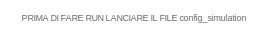
[diagram: root canvas - part 1/3, top left region]
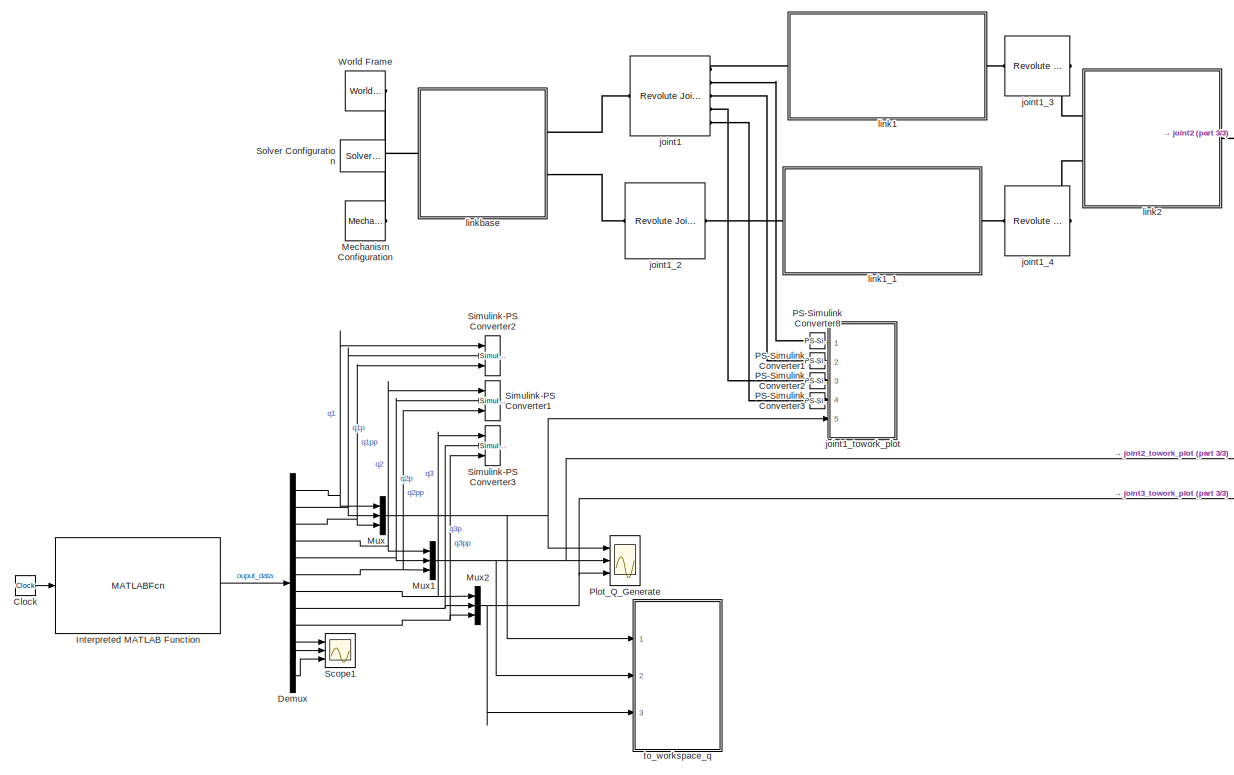
[diagram: root canvas - part 2/3, left side, full height]
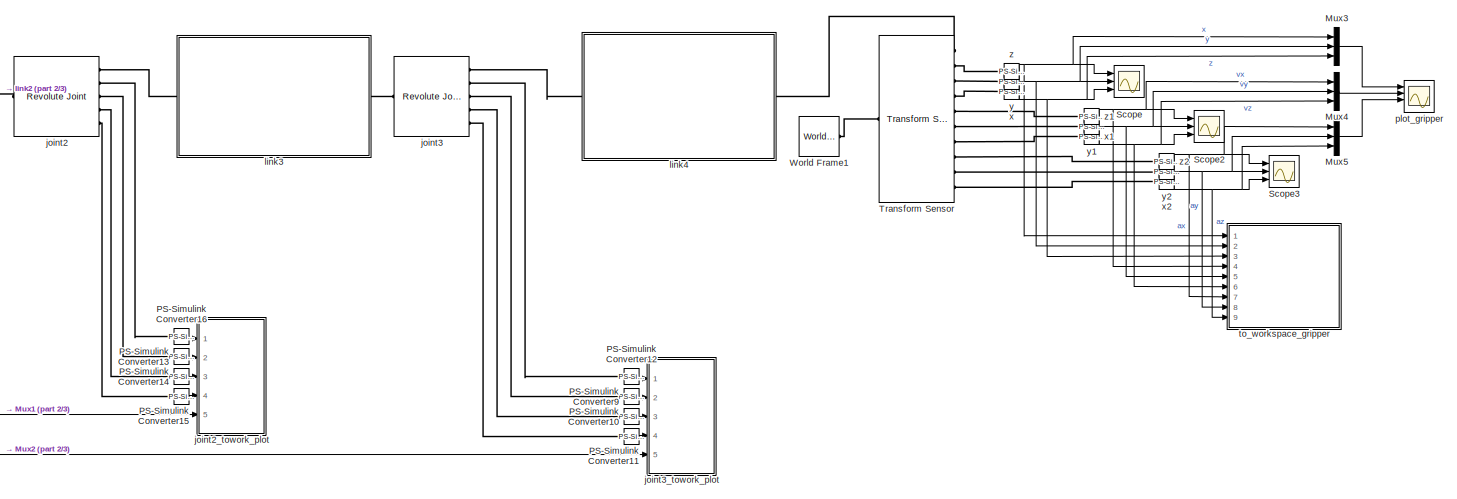
[diagram: root canvas - part 3/3, middle right region]
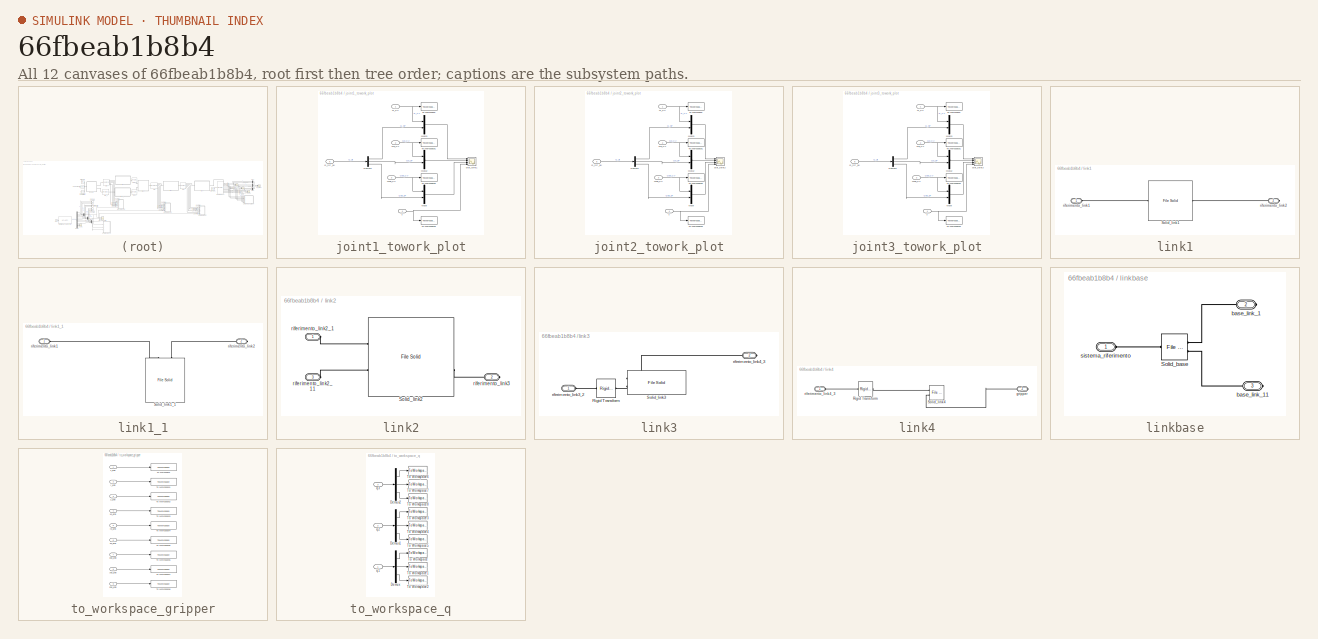
[diagram: thumbnail index - all 12 canvases of the model, root first then tree order]
MODEL slx_66fbeab1b8b4
KIND model
CONFIG AbsTol = auto
CONFIG EnableMultiTasking = off
CONFIG FixedStep = auto
CONFIG MaxStep = 0.001
CONFIG MinStep = auto
CONFIG RelTol = 1e-3
CONFIG SampleTimeConstraint = Unconstrained
CONFIG Solver = ode15s
CONFIG SolverName = ode15s
CONFIG StartTime = 0.0
CONFIG StopTime = 10
BLOCK [Clock] Clock
  DisplayTime = on
BLOCK [Demux] Demux
  Outputs = 12
  Ports = [1, 12]
BLOCK [MATLABFcn] Interpreted MATLAB Function
  MATLABFcn = trajectory_generator_test
  Ports = [1, 1]
BLOCK [Reference] Mechanism Configuration  REF=sm_lib/Utilities/Mechanism
Configuration
  Ports = [0, 0, 0, 0, 0, 0, 1]
  SourceBlock = sm_lib/Utilities/Mechanism\nConfiguration
  SourceProductBaseCode = MS
  SourceType = Mechanism\nConfiguration
BLOCK [Mux] Mux
  DisplayOption = bar
  Inputs = 3
  Ports = [3, 1]
BLOCK [Mux] Mux1
  DisplayOption = bar
  Inputs = 3
  Ports = [3, 1]
BLOCK [Mux] Mux2
  DisplayOption = bar
  Inputs = 3
  Ports = [3, 1]
BLOCK [Mux] Mux3
  DisplayOption = bar
  Inputs = 3
  Ports = [3, 1]
BLOCK [Mux] Mux4
  DisplayOption = bar
  Inputs = 3
  Ports = [3, 1]
BLOCK [Mux] Mux5
  DisplayOption = bar
  Inputs = 3
  Ports = [3, 1]
BLOCK [Reference] PS-Simulink Converter1  REF=nesl_utility/PS-Simulink
Converter
  Ports = [0, 1, 0, 0, 0, 1]
  SourceBlock = nesl_utility/PS-Simulink\nConverter
  SourceProductBaseCode = SS
  SourceType = PS-Simulink\nConverter
BLOCK [Reference] PS-Simulink Converter10  REF=nesl_utility/PS-Simulink
Converter
  Ports = [0, 1, 0, 0, 0, 1]
  SourceBlock = nesl_utility/PS-Simulink\nConverter
  SourceProductBaseCode = SS
  SourceType = PS-Simulink\nConverter
BLOCK [Reference] PS-Simulink Converter11  REF=nesl_utility/PS-Simulink
Converter
  Ports = [0, 1, 0, 0, 0, 1]
  SourceBlock = nesl_utility/PS-Simulink\nConverter
  SourceProductBaseCode = SS
  SourceType = PS-Simulink\nConverter
BLOCK [Reference] PS-Simulink Converter12  REF=nesl_utility/PS-Simulink
Converter
  Ports = [0, 1, 0, 0, 0, 1]
  SourceBlock = nesl_utility/PS-Simulink\nConverter
  SourceProductBaseCode = SS
  SourceType = PS-Simulink\nConverter
BLOCK [Reference] PS-Simulink Converter13  REF=nesl_utility/PS-Simulink
Converter
  Ports = [0, 1, 0, 0, 0, 1]
  SourceBlock = nesl_utility/PS-Simulink\nConverter
  SourceProductBaseCode = SS
  SourceType = PS-Simulink\nConverter
BLOCK [Reference] PS-Simulink Converter14  REF=nesl_utility/PS-Simulink
Converter
  Ports = [0, 1, 0, 0, 0, 1]
  SourceBlock = nesl_utility/PS-Simulink\nConverter
  SourceProductBaseCode = SS
  SourceType = PS-Simulink\nConverter
BLOCK [Reference] PS-Simulink Converter15  REF=nesl_utility/PS-Simulink
Converter
  Ports = [0, 1, 0, 0, 0, 1]
  SourceBlock = nesl_utility/PS-Simulink\nConverter
  SourceProductBaseCode = SS
  SourceType = PS-Simulink\nConverter
BLOCK [Reference] PS-Simulink Converter16  REF=nesl_utility/PS-Simulink
Converter
  Ports = [0, 1, 0, 0, 0, 1]
  SourceBlock = nesl_utility/PS-Simulink\nConverter
  SourceProductBaseCode = SS
  SourceType = PS-Simulink\nConverter
BLOCK [Reference] PS-Simulink Converter2  REF=nesl_utility/PS-Simulink
Converter
  Ports = [0, 1, 0, 0, 0, 1]
  SourceBlock = nesl_utility/PS-Simulink\nConverter
  SourceProductBaseCode = SS
  SourceType = PS-Simulink\nConverter
BLOCK [Reference] PS-Simulink Converter3  REF=nesl_utility/PS-Simulink
Converter
  Ports = [0, 1, 0, 0, 0, 1]
  SourceBlock = nesl_utility/PS-Simulink\nConverter
  SourceProductBaseCode = SS
  SourceType = PS-Simulink\nConverter
BLOCK [Reference] PS-Simulink Converter8  REF=nesl_utility/PS-Simulink
Converter
  Ports = [0, 1, 0, 0, 0, 1]
  SourceBlock = nesl_utility/PS-Simulink\nConverter
  SourceProductBaseCode = SS
  SourceType = PS-Simulink\nConverter
BLOCK [Reference] PS-Simulink Converter9  REF=nesl_utility/PS-Simulink
Converter
  Ports = [0, 1, 0, 0, 0, 1]
  SourceBlock = nesl_utility/PS-Simulink\nConverter
  SourceProductBaseCode = SS
  SourceType = PS-Simulink\nConverter
BLOCK [Scope] Plot_Q_Generate
  Floating = off
  NameLocation = top
  NumInputPorts = 3
  Ports = [3]
  ScopeSpecificationString = Simulink.scopes.TimeScopeBlockCfg('CurrentConfiguration', extmgr.ConfigurationSet(extmgr.Configuration('Core','General UI',true),extmgr.Configuration('Core','Source UI',true),extmgr.Configuration('Sources','WiredSimulink',true,'DataLoggingVariableName','ScopeData2','DataLoggingSaveFormat','StructureWithTime','DataLoggingMaxPoints','10000','DataLoggingLimitDataPoints',true,'DataLoggingDecimation','...<+3819ch>
BLOCK [Scope] Scope
  Floating = off
  NumInputPorts = 3
  Ports = [3]
  ScopeSpecificationString = Simulink.scopes.TimeScopeBlockCfg('CurrentConfiguration', extmgr.ConfigurationSet(extmgr.Configuration('Core','General UI',true),extmgr.Configuration('Core','Source UI',true),extmgr.Configuration('Sources','WiredSimulink',true,'DataLoggingVariableName','ScopeData1'),extmgr.Configuration('Visuals','Time Domain',true,'SerializedDisplays',{struct('MinYLimReal','-1.16935','MaxYLimReal','1.19866','YLab...<+1472ch>
BLOCK [Scope] Scope1
  Floating = off
  NumInputPorts = 3
  Ports = [3]
  ScopeSpecificationString = Simulink.scopes.TimeScopeBlockCfg('CurrentConfiguration', extmgr.ConfigurationSet(extmgr.Configuration('Core','General UI',true),extmgr.Configuration('Core','Source UI',true),extmgr.Configuration('Sources','WiredSimulink',true,'DataLoggingVariableName','ScopeData1'),extmgr.Configuration('Visuals','Time Domain',true),extmgr.Configuration('Tools','Plot Navigation',true),extmgr.Configuration('Tools',...<+40ch>
BLOCK [Scope] Scope2
  Floating = off
  NumInputPorts = 3
  Ports = [3]
  ScopeSpecificationString = Simulink.scopes.TimeScopeBlockCfg('CurrentConfiguration', extmgr.ConfigurationSet(extmgr.Configuration('Core','General UI',true),extmgr.Configuration('Core','Source UI',true),extmgr.Configuration('Sources','WiredSimulink',true,'DataLoggingVariableName','ScopeData3'),extmgr.Configuration('Visuals','Time Domain',true,'SerializedDisplays',{struct('MinYLimReal','-1.16935','MaxYLimReal','1.19866','YLab...<+1469ch>
BLOCK [Scope] Scope3
  Floating = off
  NumInputPorts = 3
  Ports = [3]
  ScopeSpecificationString = Simulink.scopes.TimeScopeBlockCfg('CurrentConfiguration', extmgr.ConfigurationSet(extmgr.Configuration('Core','General UI',true),extmgr.Configuration('Core','Source UI',true),extmgr.Configuration('Sources','WiredSimulink',true,'DataLoggingVariableName','ScopeData4'),extmgr.Configuration('Visuals','Time Domain',true,'SerializedDisplays',{struct('MinYLimReal','-167.40944','MaxYLimReal','212.2559','Y...<+1480ch>
BLOCK [Reference] Simulink-PS Converter1  REF=nesl_utility/Simulink-PS
Converter
  Ports = [3, 0, 0, 0, 0, 0, 1]
  SourceBlock = nesl_utility/Simulink-PS\nConverter
  SourceProductBaseCode = SS
  SourceType = Simulink-PS\nConverter
BLOCK [Reference] Simulink-PS Converter2  REF=nesl_utility/Simulink-PS
Converter
  Ports = [3, 0, 0, 0, 0, 0, 1]
  SourceBlock = nesl_utility/Simulink-PS\nConverter
  SourceProductBaseCode = SS
  SourceType = Simulink-PS\nConverter
BLOCK [Reference] Simulink-PS Converter3  REF=nesl_utility/Simulink-PS
Converter
  Ports = [3, 0, 0, 0, 0, 0, 1]
  SourceBlock = nesl_utility/Simulink-PS\nConverter
  SourceProductBaseCode = SS
  SourceType = Simulink-PS\nConverter
BLOCK [Reference] Solver Configuration  REF=nesl_utility/Solver
Configuration
  Ports = [0, 0, 0, 0, 0, 0, 1]
  SourceBlock = nesl_utility/Solver\nConfiguration
  SourceProductBaseCode = SS
  SourceType = Solver\nConfiguration
BLOCK [Reference] Transform Sensor  REF=sm_lib/Frames and
Transforms/Transform
Sensor
  Ports = [0, 0, 0, 0, 0, 1, 10]
  SourceBlock = sm_lib/Frames and\nTransforms/Transform\nSensor
  SourceProductBaseCode = MS
  SourceType = Transform\nSensor
BLOCK [Reference] World Frame  REF=sm_lib/Frames and
Transforms/World Frame
  Ports = [0, 0, 0, 0, 0, 0, 1]
  SourceBlock = sm_lib/Frames and\nTransforms/World Frame
  SourceProductBaseCode = MS
  SourceType = World Frame
BLOCK [Reference] World Frame1  REF=sm_lib/Frames and
Transforms/World Frame
  NameLocation = top
  Ports = [0, 0, 0, 0, 0, 0, 1]
  SourceBlock = sm_lib/Frames and\nTransforms/World Frame
  SourceProductBaseCode = MS
  SourceType = World Frame
BLOCK [Reference] joint1  REF=sm_lib/Joints/Revolute Joint
  Ports = [0, 0, 0, 0, 0, 1, 5]
  SourceBlock = sm_lib/Joints/Revolute Joint
  SourceProductBaseCode = MS
  SourceType = Revolute Joint
BLOCK [Reference] joint1_2  REF=sm_lib/Joints/Revolute Joint
  Ports = [0, 0, 0, 0, 0, 1, 1]
  SourceBlock = sm_lib/Joints/Revolute Joint
  SourceProductBaseCode = MS
  SourceType = Revolute Joint
BLOCK [Reference] joint1_3  REF=sm_lib/Joints/Revolute Joint
  Ports = [0, 0, 0, 0, 0, 1, 1]
  SourceBlock = sm_lib/Joints/Revolute Joint
  SourceProductBaseCode = MS
  SourceType = Revolute Joint
BLOCK [Reference] joint1_4  REF=sm_lib/Joints/Revolute Joint
  Ports = [0, 0, 0, 0, 0, 1, 1]
  SourceBlock = sm_lib/Joints/Revolute Joint
  SourceProductBaseCode = MS
  SourceType = Revolute Joint
BLOCK [SubSystem] joint1_towork_plot
  Ports = [5]
  RequestExecContextInheritance = off
BLOCK [Demux] joint1_towork_plot/Demux1
  Outputs = 3
  Ports = [1, 3]
BLOCK [Mux] joint1_towork_plot/Mux12
  DisplayOption = bar
  Inputs = 2
  Ports = [2, 1]
BLOCK [Mux] joint1_towork_plot/Mux13
  DisplayOption = bar
  Inputs = 2
  Ports = [2, 1]
BLOCK [Mux] joint1_towork_plot/Mux9
  DisplayOption = bar
  Inputs = 2
  Ports = [2, 1]
BLOCK [Inport] joint1_towork_plot/Q_CV
BLOCK [Inport] joint1_towork_plot/Q_SP_all
  Port = 5
BLOCK [Inport] joint1_towork_plot/Qp_CV
  Port = 2
BLOCK [Inport] joint1_towork_plot/Qpp_CV
  Port = 3
BLOCK [Inport] joint1_towork_plot/T
  Port = 4
BLOCK [ToWorkspace] joint1_towork_plot/To Workspace
  FixptAsFi = on
  MaxDataPoints = inf
  Ports = [1]
  SampleTime = -1
  SaveFormat = Timeseries
  VariableName = q1_result
BLOCK [ToWorkspace] joint1_towork_plot/To Workspace1
  FixptAsFi = on
  MaxDataPoints = inf
  Ports = [1]
  SampleTime = -1
  SaveFormat = Timeseries
  VariableName = q1p_result
BLOCK [ToWorkspace] joint1_towork_plot/To Workspace2
  FixptAsFi = on
  MaxDataPoints = inf
  Ports = [1]
  SampleTime = -1
  SaveFormat = Timeseries
  VariableName = q1pp_result
BLOCK [ToWorkspace] joint1_towork_plot/To Workspace3
  FixptAsFi = on
  MaxDataPoints = inf
  Ports = [1]
  SampleTime = -1
  SaveFormat = Timeseries
  VariableName = t1_result
BLOCK [Scope] joint1_towork_plot/plot_joint1
  Floating = off
  NumInputPorts = 4
  Ports = [4]
  ScopeSpecificationString = Simulink.scopes.TimeScopeBlockCfg('CurrentConfiguration', extmgr.ConfigurationSet(extmgr.Configuration('Core','General UI',true),extmgr.Configuration('Core','Source UI',true),extmgr.Configuration('Sources','WiredSimulink',true,'DataLoggingVariableName','ScopeData1'),extmgr.Configuration('Visuals','Time Domain',true,'SerializedDisplays',{struct('MinYLimReal','1.66135','MaxYLimReal','1.91244','YLabe...<+3583ch>
BLOCK [Reference] joint2  REF=sm_lib/Joints/Revolute Joint
  Ports = [0, 0, 0, 0, 0, 1, 5]
  SourceBlock = sm_lib/Joints/Revolute Joint
  SourceProductBaseCode = MS
  SourceType = Revolute Joint
BLOCK [SubSystem] joint2_towork_plot
  Ports = [5]
  RequestExecContextInheritance = off
BLOCK [Demux] joint2_towork_plot/Demux1
  Outputs = 3
  Ports = [1, 3]
BLOCK [Mux] joint2_towork_plot/Mux12
  DisplayOption = bar
  Inputs = 2
  Ports = [2, 1]
BLOCK [Mux] joint2_towork_plot/Mux13
  DisplayOption = bar
  Inputs = 2
  Ports = [2, 1]
BLOCK [Mux] joint2_towork_plot/Mux9
  DisplayOption = bar
  Inputs = 2
  Ports = [2, 1]
BLOCK [Inport] joint2_towork_plot/Q_CV
BLOCK [Inport] joint2_towork_plot/Q_SP_all
  Port = 5
BLOCK [Inport] joint2_towork_plot/Qp_CV
  Port = 2
BLOCK [Inport] joint2_towork_plot/Qpp_CV
  Port = 3
BLOCK [Inport] joint2_towork_plot/T
  Port = 4
BLOCK [ToWorkspace] joint2_towork_plot/To Workspace
  FixptAsFi = on
  MaxDataPoints = inf
  Ports = [1]
  SampleTime = -1
  SaveFormat = Timeseries
  VariableName = q2_result
BLOCK [ToWorkspace] joint2_towork_plot/To Workspace1
  FixptAsFi = on
  MaxDataPoints = inf
  Ports = [1]
  SampleTime = -1
  SaveFormat = Timeseries
  VariableName = q2p_result
BLOCK [ToWorkspace] joint2_towork_plot/To Workspace2
  FixptAsFi = on
  MaxDataPoints = inf
  Ports = [1]
  SampleTime = -1
  SaveFormat = Timeseries
  VariableName = q2pp_result
BLOCK [ToWorkspace] joint2_towork_plot/To Workspace3
  FixptAsFi = on
  MaxDataPoints = inf
  Ports = [1]
  SampleTime = -1
  SaveFormat = Timeseries
  VariableName = t2_result
BLOCK [Scope] joint2_towork_plot/plot_joint2
  Floating = off
  NumInputPorts = 4
  Ports = [4]
  ScopeSpecificationString = Simulink.scopes.TimeScopeBlockCfg('CurrentConfiguration', extmgr.ConfigurationSet(extmgr.Configuration('Core','General UI',true),extmgr.Configuration('Core','Source UI',true),extmgr.Configuration('Sources','WiredSimulink',true,'DataLoggingVariableName','ScopeData1'),extmgr.Configuration('Visuals','Time Domain',true,'SerializedDisplays',{struct('MinYLimReal','1.66135','MaxYLimReal','1.91244','YLabe...<+3580ch>
BLOCK [Reference] joint3  REF=sm_lib/Joints/Revolute Joint
  Ports = [0, 0, 0, 0, 0, 1, 5]
  SourceBlock = sm_lib/Joints/Revolute Joint
  SourceProductBaseCode = MS
  SourceType = Revolute Joint
BLOCK [SubSystem] joint3_towork_plot
  Ports = [5]
  RequestExecContextInheritance = off
BLOCK [Demux] joint3_towork_plot/Demux1
  Outputs = 3
  Ports = [1, 3]
BLOCK [Mux] joint3_towork_plot/Mux12
  DisplayOption = bar
  Inputs = 2
  Ports = [2, 1]
BLOCK [Mux] joint3_towork_plot/Mux13
  DisplayOption = bar
  Inputs = 2
  Ports = [2, 1]
BLOCK [Mux] joint3_towork_plot/Mux9
  DisplayOption = bar
  Inputs = 2
  Ports = [2, 1]
BLOCK [Inport] joint3_towork_plot/Q_CV
BLOCK [Inport] joint3_towork_plot/Q_SP_all
  Port = 5
BLOCK [Inport] joint3_towork_plot/Qp_CV
  Port = 2
BLOCK [Inport] joint3_towork_plot/Qpp_CV
  Port = 3
BLOCK [Inport] joint3_towork_plot/T
  Port = 4
BLOCK [ToWorkspace] joint3_towork_plot/To Workspace
  FixptAsFi = on
  MaxDataPoints = inf
  Ports = [1]
  SampleTime = -1
  SaveFormat = Timeseries
  VariableName = q3_result
BLOCK [ToWorkspace] joint3_towork_plot/To Workspace1
  FixptAsFi = on
  MaxDataPoints = inf
  Ports = [1]
  SampleTime = -1
  SaveFormat = Timeseries
  VariableName = q3p_result
BLOCK [ToWorkspace] joint3_towork_plot/To Workspace2
  FixptAsFi = on
  MaxDataPoints = inf
  Ports = [1]
  SampleTime = -1
  SaveFormat = Timeseries
  VariableName = q3pp_result
BLOCK [ToWorkspace] joint3_towork_plot/To Workspace3
  FixptAsFi = on
  MaxDataPoints = inf
  Ports = [1]
  SampleTime = -1
  SaveFormat = Timeseries
  VariableName = t3_result
BLOCK [Scope] joint3_towork_plot/plot_joint3
  Floating = off
  NumInputPorts = 4
  Ports = [4]
  ScopeSpecificationString = Simulink.scopes.TimeScopeBlockCfg('CurrentConfiguration', extmgr.ConfigurationSet(extmgr.Configuration('Core','General UI',true),extmgr.Configuration('Core','Source UI',true),extmgr.Configuration('Sources','WiredSimulink',true,'DataLoggingVariableName','ScopeData1'),extmgr.Configuration('Visuals','Time Domain',true,'SerializedDisplays',{struct('MinYLimReal','1.66135','MaxYLimReal','1.91244','YLabe...<+3620ch>
BLOCK [SubSystem] link1
  Ports = [0, 0, 0, 0, 0, 1, 1]
  RequestExecContextInheritance = off
BLOCK [Reference] link1/Solid_link1  REF=sm_lib/Body Elements/File Solid
  Ports = [0, 0, 0, 0, 0, 1, 1]
  SourceBlock = sm_lib/Body Elements/File Solid
  SourceProductBaseCode = MS
  SourceType = File Solid
BLOCK [PMIOPort] link1/riferimento_link1
  Side = Left
BLOCK [PMIOPort] link1/riferimento_link2
  Port = 2
  Side = Right
BLOCK [SubSystem] link1_1
  Ports = [0, 0, 0, 0, 0, 1, 1]
  RequestExecContextInheritance = off
BLOCK [Reference] link1_1/Solid_link1_1  REF=sm_lib/Body Elements/File Solid
  NameLocation = left
  Ports = [0, 0, 0, 0, 0, 2, 1]
  SourceBlock = sm_lib/Body Elements/File Solid
  SourceProductBaseCode = MS
  SourceType = File Solid
BLOCK [PMIOPort] link1_1/riferimento_link1
  Side = Left
BLOCK [PMIOPort] link1_1/riferimento_link2
  Port = 2
  Side = Right
BLOCK [SubSystem] link2
  Ports = [0, 0, 0, 0, 0, 2, 1]
  RequestExecContextInheritance = off
BLOCK [Reference] link2/Solid_link2  REF=sm_lib/Body Elements/File Solid
  Ports = [0, 0, 0, 0, 0, 2, 2]
  SourceBlock = sm_lib/Body Elements/File Solid
  SourceProductBaseCode = MS
  SourceType = File Solid
BLOCK [PMIOPort] link2/riferimento_link2_1
  Side = Left
BLOCK [PMIOPort] link2/riferimento_link2_11
  Port = 3
  Side = Left
BLOCK [PMIOPort] link2/riferimento_link3
  Port = 2
  Side = Right
BLOCK [SubSystem] link3
  Ports = [0, 0, 0, 0, 0, 1, 1]
  RequestExecContextInheritance = off
BLOCK [Reference] link3/Rigid Transform  REF=sm_lib/Frames and
Transforms/Rigid
Transform
  Ports = [0, 0, 0, 0, 0, 1, 1]
  SourceBlock = sm_lib/Frames and\nTransforms/Rigid\nTransform
  SourceProductBaseCode = MS
  SourceType = Rigid\nTransform
BLOCK [Reference] link3/Solid_link3  REF=sm_lib/Body Elements/File Solid
  Ports = [0, 0, 0, 0, 0, 2, 1]
  SourceBlock = sm_lib/Body Elements/File Solid
  SourceProductBaseCode = MS
  SourceType = File Solid
BLOCK [PMIOPort] link3/riferimento_link3_2
  Side = Left
BLOCK [PMIOPort] link3/riferimento_link4_3
  Port = 2
  Side = Right
BLOCK [SubSystem] link4
  Ports = [0, 0, 0, 0, 0, 1, 1]
  RequestExecContextInheritance = off
BLOCK [Reference] link4/Rigid Transform  REF=sm_lib/Frames and
Transforms/Rigid
Transform
  Ports = [0, 0, 0, 0, 0, 1, 1]
  SourceBlock = sm_lib/Frames and\nTransforms/Rigid\nTransform
  SourceProductBaseCode = MS
  SourceType = Rigid\nTransform
BLOCK [Reference] link4/Solid_link4  REF=sm_lib/Body Elements/File Solid
  Ports = [0, 0, 0, 0, 0, 2, 1]
  SourceBlock = sm_lib/Body Elements/File Solid
  SourceProductBaseCode = MS
  SourceType = File Solid
BLOCK [PMIOPort] link4/gripper
  Port = 2
  Side = Right
BLOCK [PMIOPort] link4/riferimento_link4_3
  Side = Left
BLOCK [SubSystem] linkbase
  Ports = [0, 0, 0, 0, 0, 1, 2]
  RequestExecContextInheritance = off
BLOCK [Reference] linkbase/Solid_base  REF=sm_lib/Body Elements/File Solid
  NameLocation = top
  Ports = [0, 0, 0, 0, 0, 2, 1]
  SourceBlock = sm_lib/Body Elements/File Solid
  SourceProductBaseCode = MS
  SourceType = File Solid
BLOCK [PMIOPort] linkbase/base_link_1
  Port = 2
  Side = Right
BLOCK [PMIOPort] linkbase/base_link_11
  Port = 3
  Side = Right
BLOCK [PMIOPort] linkbase/sistema_riferimento
  Side = Left
BLOCK [Scope] plot_gripper
  Floating = off
  NumInputPorts = 4
  Ports = [4]
  ScopeSpecificationString = Simulink.scopes.TimeScopeBlockCfg('CurrentConfiguration', extmgr.ConfigurationSet(extmgr.Configuration('Core','General UI',true),extmgr.Configuration('Core','Source UI',true),extmgr.Configuration('Sources','WiredSimulink',true,'DataLoggingVariableName','ScopeData2'),extmgr.Configuration('Visuals','Time Domain',true,'SerializedDisplays',{struct('MinYLimReal','1.66135','MaxYLimReal','1.91244','YLabe...<+3744ch>
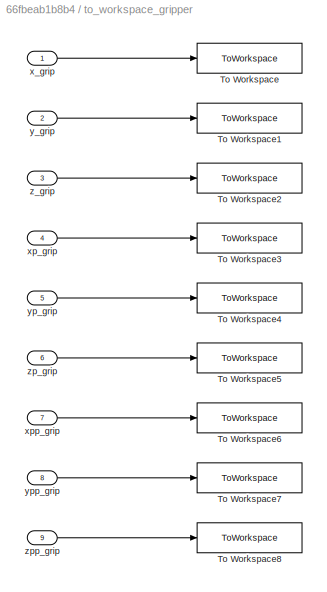
BLOCK [SubSystem] to_workspace_gripper
  Ports = [9]
  RequestExecContextInheritance = off
BLOCK [ToWorkspace] to_workspace_gripper/To Workspace
  FixptAsFi = on
  MaxDataPoints = inf
  Ports = [1]
  SampleTime = -1
  SaveFormat = Timeseries
  VariableName = x_grip_result
BLOCK [ToWorkspace] to_workspace_gripper/To Workspace1
  FixptAsFi = on
  MaxDataPoints = inf
  Ports = [1]
  SampleTime = -1
  SaveFormat = Timeseries
  VariableName = y_grip_result
BLOCK [ToWorkspace] to_workspace_gripper/To Workspace2
  FixptAsFi = on
  MaxDataPoints = inf
  Ports = [1]
  SampleTime = -1
  SaveFormat = Timeseries
  VariableName = z_grip_result
BLOCK [ToWorkspace] to_workspace_gripper/To Workspace3
  FixptAsFi = on
  MaxDataPoints = inf
  Ports = [1]
  SampleTime = -1
  SaveFormat = Timeseries
  VariableName = xp_grip_result
BLOCK [ToWorkspace] to_workspace_gripper/To Workspace4
  FixptAsFi = on
  MaxDataPoints = inf
  Ports = [1]
  SampleTime = -1
  SaveFormat = Timeseries
  VariableName = yp_grip_result
BLOCK [ToWorkspace] to_workspace_gripper/To Workspace5
  FixptAsFi = on
  MaxDataPoints = inf
  Ports = [1]
  SampleTime = -1
  SaveFormat = Timeseries
  VariableName = zp_grip_result
BLOCK [ToWorkspace] to_workspace_gripper/To Workspace6
  FixptAsFi = on
  MaxDataPoints = inf
  Ports = [1]
  SampleTime = -1
  SaveFormat = Timeseries
  VariableName = xpp_grip_result
BLOCK [ToWorkspace] to_workspace_gripper/To Workspace7
  FixptAsFi = on
  MaxDataPoints = inf
  Ports = [1]
  SampleTime = -1
  SaveFormat = Timeseries
  VariableName = ypp_grip_result
BLOCK [ToWorkspace] to_workspace_gripper/To Workspace8
  FixptAsFi = on
  MaxDataPoints = inf
  Ports = [1]
  SampleTime = -1
  SaveFormat = Timeseries
  VariableName = zpp_grip_result
BLOCK [Inport] to_workspace_gripper/x_grip
BLOCK [Inport] to_workspace_gripper/xp_grip
  Port = 4
BLOCK [Inport] to_workspace_gripper/xpp_grip
  Port = 7
BLOCK [Inport] to_workspace_gripper/y_grip
  Port = 2
BLOCK [Inport] to_workspace_gripper/yp_grip
  Port = 5
BLOCK [Inport] to_workspace_gripper/ypp_grip
  Port = 8
BLOCK [Inport] to_workspace_gripper/z_grip
  Port = 3
BLOCK [Inport] to_workspace_gripper/zp_grip
  Port = 6
BLOCK [Inport] to_workspace_gripper/zpp_grip
  Port = 9
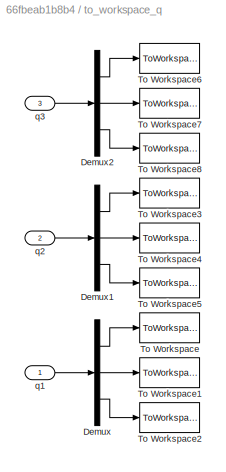
BLOCK [SubSystem] to_workspace_q
  Ports = [3]
  RequestExecContextInheritance = off
BLOCK [Demux] to_workspace_q/Demux
  Outputs = 3
  Ports = [1, 3]
BLOCK [Demux] to_workspace_q/Demux1
  Outputs = 3
  Ports = [1, 3]
BLOCK [Demux] to_workspace_q/Demux2
  Outputs = 3
  Ports = [1, 3]
BLOCK [ToWorkspace] to_workspace_q/To Workspace
  FixptAsFi = on
  MaxDataPoints = inf
  Ports = [1]
  SampleTime = -1
  SaveFormat = Timeseries
  VariableName = q1
BLOCK [ToWorkspace] to_workspace_q/To Workspace1
  FixptAsFi = on
  MaxDataPoints = inf
  Ports = [1]
  SampleTime = -1
  SaveFormat = Timeseries
  VariableName = q1p
BLOCK [ToWorkspace] to_workspace_q/To Workspace2
  FixptAsFi = on
  MaxDataPoints = inf
  Ports = [1]
  SampleTime = -1
  SaveFormat = Timeseries
  VariableName = q1pp
BLOCK [ToWorkspace] to_workspace_q/To Workspace3
  FixptAsFi = on
  MaxDataPoints = inf
  Ports = [1]
  SampleTime = -1
  SaveFormat = Timeseries
  VariableName = q2
BLOCK [ToWorkspace] to_workspace_q/To Workspace4
  FixptAsFi = on
  MaxDataPoints = inf
  Ports = [1]
  SampleTime = -1
  SaveFormat = Timeseries
  VariableName = q2p
BLOCK [ToWorkspace] to_workspace_q/To Workspace5
  FixptAsFi = on
  MaxDataPoints = inf
  Ports = [1]
  SampleTime = -1
  SaveFormat = Timeseries
  VariableName = q2pp
BLOCK [ToWorkspace] to_workspace_q/To Workspace6
  FixptAsFi = on
  MaxDataPoints = inf
  Ports = [1]
  SampleTime = -1
  SaveFormat = Timeseries
  VariableName = q3
BLOCK [ToWorkspace] to_workspace_q/To Workspace7
  FixptAsFi = on
  MaxDataPoints = inf
  Ports = [1]
  SampleTime = -1
  SaveFormat = Timeseries
  VariableName = q3p
BLOCK [ToWorkspace] to_workspace_q/To Workspace8
  FixptAsFi = on
  MaxDataPoints = inf
  Ports = [1]
  SampleTime = -1
  SaveFormat = Timeseries
  VariableName = q3pp
BLOCK [Inport] to_workspace_q/q1
BLOCK [Inport] to_workspace_q/q2
  Port = 2
BLOCK [Inport] to_workspace_q/q3
  Port = 3
BLOCK [Reference] x  REF=nesl_utility/PS-Simulink
Converter
  Ports = [0, 1, 0, 0, 0, 1]
  SourceBlock = nesl_utility/PS-Simulink\nConverter
  SourceProductBaseCode = SS
  SourceType = PS-Simulink\nConverter
BLOCK [Reference] x1  REF=nesl_utility/PS-Simulink
Converter
  Ports = [0, 1, 0, 0, 0, 1]
  SourceBlock = nesl_utility/PS-Simulink\nConverter
  SourceProductBaseCode = SS
  SourceType = PS-Simulink\nConverter
BLOCK [Reference] x2  REF=nesl_utility/PS-Simulink
Converter
  Ports = [0, 1, 0, 0, 0, 1]
  SourceBlock = nesl_utility/PS-Simulink\nConverter
  SourceProductBaseCode = SS
  SourceType = PS-Simulink\nConverter
BLOCK [Reference] y  REF=nesl_utility/PS-Simulink
Converter
  Ports = [0, 1, 0, 0, 0, 1]
  SourceBlock = nesl_utility/PS-Simulink\nConverter
  SourceProductBaseCode = SS
  SourceType = PS-Simulink\nConverter
BLOCK [Reference] y1  REF=nesl_utility/PS-Simulink
Converter
  Ports = [0, 1, 0, 0, 0, 1]
  SourceBlock = nesl_utility/PS-Simulink\nConverter
  SourceProductBaseCode = SS
  SourceType = PS-Simulink\nConverter
BLOCK [Reference] y2  REF=nesl_utility/PS-Simulink
Converter
  Ports = [0, 1, 0, 0, 0, 1]
  SourceBlock = nesl_utility/PS-Simulink\nConverter
  SourceProductBaseCode = SS
  SourceType = PS-Simulink\nConverter
BLOCK [Reference] z  REF=nesl_utility/PS-Simulink
Converter
  Ports = [0, 1, 0, 0, 0, 1]
  SourceBlock = nesl_utility/PS-Simulink\nConverter
  SourceProductBaseCode = SS
  SourceType = PS-Simulink\nConverter
BLOCK [Reference] z1  REF=nesl_utility/PS-Simulink
Converter
  Ports = [0, 1, 0, 0, 0, 1]
  SourceBlock = nesl_utility/PS-Simulink\nConverter
  SourceProductBaseCode = SS
  SourceType = PS-Simulink\nConverter
BLOCK [Reference] z2  REF=nesl_utility/PS-Simulink
Converter
  Ports = [0, 1, 0, 0, 0, 1]
  SourceBlock = nesl_utility/PS-Simulink\nConverter
  SourceProductBaseCode = SS
  SourceType = PS-Simulink\nConverter
ANNOTATION (root): PRIMA DI FARE RUN LANCIARE IL FILE config_simulation
LINE Clock:1 -> Interpreted MATLAB Function:1
NET Demux:1 -> Mux:1, Simulink-PS Converter2:1
LINE Demux:10 -> Scope1:1
LINE Demux:11 -> Scope1:2
LINE Demux:12 -> Scope1:3
NET Demux:2 -> Mux:2, Simulink-PS Converter2:2
NET Demux:3 -> Mux:3, Simulink-PS Converter2:3
NET Demux:4 -> Mux1:1, Simulink-PS Converter1:1
NET Demux:5 -> Mux1:2, Simulink-PS Converter1:2
NET Demux:6 -> Mux1:3, Simulink-PS Converter1:3
NET Demux:7 -> Mux2:1, Simulink-PS Converter3:1
NET Demux:8 -> Mux2:2, Simulink-PS Converter3:2
NET Demux:9 -> Mux2:3, Simulink-PS Converter3:3
LINE Interpreted MATLAB Function:1 -> Demux:1
NET Mux1:1 -> Plot_Q_Generate:2, joint2_towork_plot:5, to_workspace_q:2
NET Mux2:1 -> Plot_Q_Generate:3, joint3_towork_plot:5, to_workspace_q:3
LINE Mux3:1 -> plot_gripper:1
LINE Mux4:1 -> plot_gripper:2
LINE Mux5:1 -> plot_gripper:3
NET Mux:1 -> Plot_Q_Generate:1, joint1_towork_plot:5, to_workspace_q:1
LINE PS-Simulink Converter10:1 -> joint3_towork_plot:3
LINE PS-Simulink Converter11:1 -> joint3_towork_plot:4
LINE PS-Simulink Converter12:1 -> joint3_towork_plot:1
LINE PS-Simulink Converter13:1 -> joint2_towork_plot:2
LINE PS-Simulink Converter14:1 -> joint2_towork_plot:3
LINE PS-Simulink Converter15:1 -> joint2_towork_plot:4
LINE PS-Simulink Converter16:1 -> joint2_towork_plot:1
LINE PS-Simulink Converter1:1 -> joint1_towork_plot:2
LINE PS-Simulink Converter2:1 -> joint1_towork_plot:3
LINE PS-Simulink Converter3:1 -> joint1_towork_plot:4
LINE PS-Simulink Converter8:1 -> joint1_towork_plot:1
LINE PS-Simulink Converter9:1 -> joint3_towork_plot:2
LINE joint1_towork_plot/Demux1:1 -> joint1_towork_plot/Mux13:2
LINE joint1_towork_plot/Demux1:2 -> joint1_towork_plot/Mux12:2
LINE joint1_towork_plot/Demux1:3 -> joint1_towork_plot/Mux9:2
LINE joint1_towork_plot/Mux12:1 -> joint1_towork_plot/plot_joint1:2
LINE joint1_towork_plot/Mux13:1 -> joint1_towork_plot/plot_joint1:1
LINE joint1_towork_plot/Mux9:1 -> joint1_towork_plot/plot_joint1:3
NET joint1_towork_plot/Q_CV:1 -> joint1_towork_plot/Mux13:1, joint1_towork_plot/To Workspace:1
LINE joint1_towork_plot/Q_SP_all:1 -> joint1_towork_plot/Demux1:1
NET joint1_towork_plot/Qp_CV:1 -> joint1_towork_plot/Mux12:1, joint1_towork_plot/To Workspace1:1
NET joint1_towork_plot/Qpp_CV:1 -> joint1_towork_plot/Mux9:1, joint1_towork_plot/To Workspace2:1
NET joint1_towork_plot/T:1 -> joint1_towork_plot/To Workspace3:1, joint1_towork_plot/plot_joint1:4
LINE joint2_towork_plot/Demux1:1 -> joint2_towork_plot/Mux13:2
LINE joint2_towork_plot/Demux1:2 -> joint2_towork_plot/Mux12:2
LINE joint2_towork_plot/Demux1:3 -> joint2_towork_plot/Mux9:2
LINE joint2_towork_plot/Mux12:1 -> joint2_towork_plot/plot_joint2:2
LINE joint2_towork_plot/Mux13:1 -> joint2_towork_plot/plot_joint2:1
LINE joint2_towork_plot/Mux9:1 -> joint2_towork_plot/plot_joint2:3
NET joint2_towork_plot/Q_CV:1 -> joint2_towork_plot/Mux13:1, joint2_towork_plot/To Workspace:1
LINE joint2_towork_plot/Q_SP_all:1 -> joint2_towork_plot/Demux1:1
NET joint2_towork_plot/Qp_CV:1 -> joint2_towork_plot/Mux12:1, joint2_towork_plot/To Workspace1:1
NET joint2_towork_plot/Qpp_CV:1 -> joint2_towork_plot/Mux9:1, joint2_towork_plot/To Workspace2:1
NET joint2_towork_plot/T:1 -> joint2_towork_plot/To Workspace3:1, joint2_towork_plot/plot_joint2:4
LINE joint3_towork_plot/Demux1:1 -> joint3_towork_plot/Mux13:2
LINE joint3_towork_plot/Demux1:2 -> joint3_towork_plot/Mux12:2
LINE joint3_towork_plot/Demux1:3 -> joint3_towork_plot/Mux9:2
LINE joint3_towork_plot/Mux12:1 -> joint3_towork_plot/plot_joint3:2
LINE joint3_towork_plot/Mux13:1 -> joint3_towork_plot/plot_joint3:1
LINE joint3_towork_plot/Mux9:1 -> joint3_towork_plot/plot_joint3:3
NET joint3_towork_plot/Q_CV:1 -> joint3_towork_plot/Mux13:1, joint3_towork_plot/To Workspace:1
LINE joint3_towork_plot/Q_SP_all:1 -> joint3_towork_plot/Demux1:1
NET joint3_towork_plot/Qp_CV:1 -> joint3_towork_plot/Mux12:1, joint3_towork_plot/To Workspace1:1
NET joint3_towork_plot/Qpp_CV:1 -> joint3_towork_plot/Mux9:1, joint3_towork_plot/To Workspace2:1
NET joint3_towork_plot/T:1 -> joint3_towork_plot/To Workspace3:1, joint3_towork_plot/plot_joint3:4
LINE to_workspace_gripper/x_grip:1 -> to_workspace_gripper/To Workspace:1
LINE to_workspace_gripper/xp_grip:1 -> to_workspace_gripper/To Workspace3:1
LINE to_workspace_gripper/xpp_grip:1 -> to_workspace_gripper/To Workspace6:1
LINE to_workspace_gripper/y_grip:1 -> to_workspace_gripper/To Workspace1:1
LINE to_workspace_gripper/yp_grip:1 -> to_workspace_gripper/To Workspace4:1
LINE to_workspace_gripper/ypp_grip:1 -> to_workspace_gripper/To Workspace7:1
LINE to_workspace_gripper/z_grip:1 -> to_workspace_gripper/To Workspace2:1
LINE to_workspace_gripper/zp_grip:1 -> to_workspace_gripper/To Workspace5:1
LINE to_workspace_gripper/zpp_grip:1 -> to_workspace_gripper/To Workspace8:1
LINE to_workspace_q/Demux1:1 -> to_workspace_q/To Workspace3:1
LINE to_workspace_q/Demux1:2 -> to_workspace_q/To Workspace4:1
LINE to_workspace_q/Demux1:3 -> to_workspace_q/To Workspace5:1
LINE to_workspace_q/Demux2:1 -> to_workspace_q/To Workspace6:1
LINE to_workspace_q/Demux2:2 -> to_workspace_q/To Workspace7:1
LINE to_workspace_q/Demux2:3 -> to_workspace_q/To Workspace8:1
LINE to_workspace_q/Demux:1 -> to_workspace_q/To Workspace:1
LINE to_workspace_q/Demux:2 -> to_workspace_q/To Workspace1:1
LINE to_workspace_q/Demux:3 -> to_workspace_q/To Workspace2:1
LINE to_workspace_q/q1:1 -> to_workspace_q/Demux:1
LINE to_workspace_q/q2:1 -> to_workspace_q/Demux1:1
LINE to_workspace_q/q3:1 -> to_workspace_q/Demux2:1
NET x1:1 -> Mux4:3, Scope2:3, to_workspace_gripper:6
NET x2:1 -> Mux5:3, Scope3:3, to_workspace_gripper:9
NET x:1 -> Mux3:3, Scope:3, to_workspace_gripper:3
NET y1:1 -> Mux4:2, Scope2:2, to_workspace_gripper:5
NET y2:1 -> Mux5:2, Scope3:2, to_workspace_gripper:8
NET y:1 -> Mux3:2, Scope:2, to_workspace_gripper:2
NET z1:1 -> Mux4:1, Scope2:1, to_workspace_gripper:4
NET z2:1 -> Mux5:1, Scope3:1, to_workspace_gripper:7
NET z:1 -> Mux3:1, Scope:1, to_workspace_gripper:1
PNET net1: Mechanism Configuration:RConn1 -- Solver Configuration:RConn1 -- World Frame:RConn1 -- linkbase:LConn1
PLINE PS-Simulink Converter10:LConn1 -- joint3:RConn4
PLINE PS-Simulink Converter11:LConn1 -- joint3:RConn5
PLINE PS-Simulink Converter12:LConn1 -- joint3:RConn2
PLINE PS-Simulink Converter13:LConn1 -- joint2:RConn3
PLINE PS-Simulink Converter14:LConn1 -- joint2:RConn4
PLINE PS-Simulink Converter15:LConn1 -- joint2:RConn5
PLINE PS-Simulink Converter16:LConn1 -- joint2:RConn2
PLINE PS-Simulink Converter1:LConn1 -- joint1:RConn3
PLINE PS-Simulink Converter2:LConn1 -- joint1:RConn4
PLINE PS-Simulink Converter3:LConn1 -- joint1:RConn5
PLINE PS-Simulink Converter8:LConn1 -- joint1:RConn2
PLINE PS-Simulink Converter9:LConn1 -- joint3:RConn3
PLINE Transform Sensor:LConn1 -- World Frame1:RConn1
PLINE Transform Sensor:RConn1 -- link4:RConn1
PLINE Transform Sensor:RConn10 -- x2:LConn1
PLINE Transform Sensor:RConn2 -- z:LConn1
PLINE Transform Sensor:RConn3 -- y:LConn1
PLINE Transform Sensor:RConn4 -- x:LConn1
PLINE Transform Sensor:RConn5 -- z1:LConn1
PLINE Transform Sensor:RConn6 -- y1:LConn1
PLINE Transform Sensor:RConn7 -- x1:LConn1
PLINE Transform Sensor:RConn8 -- z2:LConn1
PLINE Transform Sensor:RConn9 -- y2:LConn1
PLINE joint1:LConn1 -- linkbase:RConn1
PLINE joint1:RConn1 -- link1:LConn1
PLINE joint1_2:LConn1 -- linkbase:RConn2
PLINE joint1_2:RConn1 -- link1_1:LConn1
PLINE joint1_3:LConn1 -- link1:RConn1
PLINE joint1_3:RConn1 -- link2:LConn1
PLINE joint1_4:LConn1 -- link1_1:RConn1
PLINE joint1_4:RConn1 -- link2:LConn2
PLINE joint2:LConn1 -- link2:RConn1
PLINE joint2:RConn1 -- link3:LConn1
PLINE joint3:LConn1 -- link3:RConn1
PLINE joint3:RConn1 -- link4:LConn1
PLINE link1/Solid_link1:LConn1 -- link1/riferimento_link1:RConn1
PLINE link1/Solid_link1:RConn1 -- link1/riferimento_link2:RConn1
PLINE link1_1/Solid_link1_1:LConn1 -- link1_1/riferimento_link1:RConn1
PLINE link1_1/Solid_link1_1:LConn2 -- link1_1/riferimento_link2:RConn1
PLINE link2/Solid_link2:LConn1 -- link2/riferimento_link2_1:RConn1
PLINE link2/Solid_link2:LConn2 -- link2/riferimento_link2_11:RConn1
PLINE link2/Solid_link2:RConn2 -- link2/riferimento_link3:RConn1
PLINE link3/Rigid Transform:LConn1 -- link3/riferimento_link3_2:RConn1
PLINE link3/Rigid Transform:RConn1 -- link3/Solid_link3:LConn2
PLINE link3/Solid_link3:LConn1 -- link3/riferimento_link4_3:RConn1
PLINE link4/Rigid Transform:LConn1 -- link4/riferimento_link4_3:RConn1
PLINE link4/Rigid Transform:RConn1 -- link4/Solid_link4:LConn1
PLINE link4/Solid_link4:LConn2 -- link4/gripper:RConn1
PLINE linkbase/Solid_base:LConn1 -- linkbase/base_link_1:RConn1
PLINE linkbase/Solid_base:LConn2 -- linkbase/base_link_11:RConn1
PLINE linkbase/Solid_base:RConn1 -- linkbase/sistema_riferimento:RConn1
note: NET lines group one-source signal fan-out (src -> all destinations, sorted); 1:1 wires keep LINE; PNET lines group multi-terminal physical nets as a canonical sorted terminal list (undirected conserving connections); 2-terminal nets keep the pairwise PLINE form
